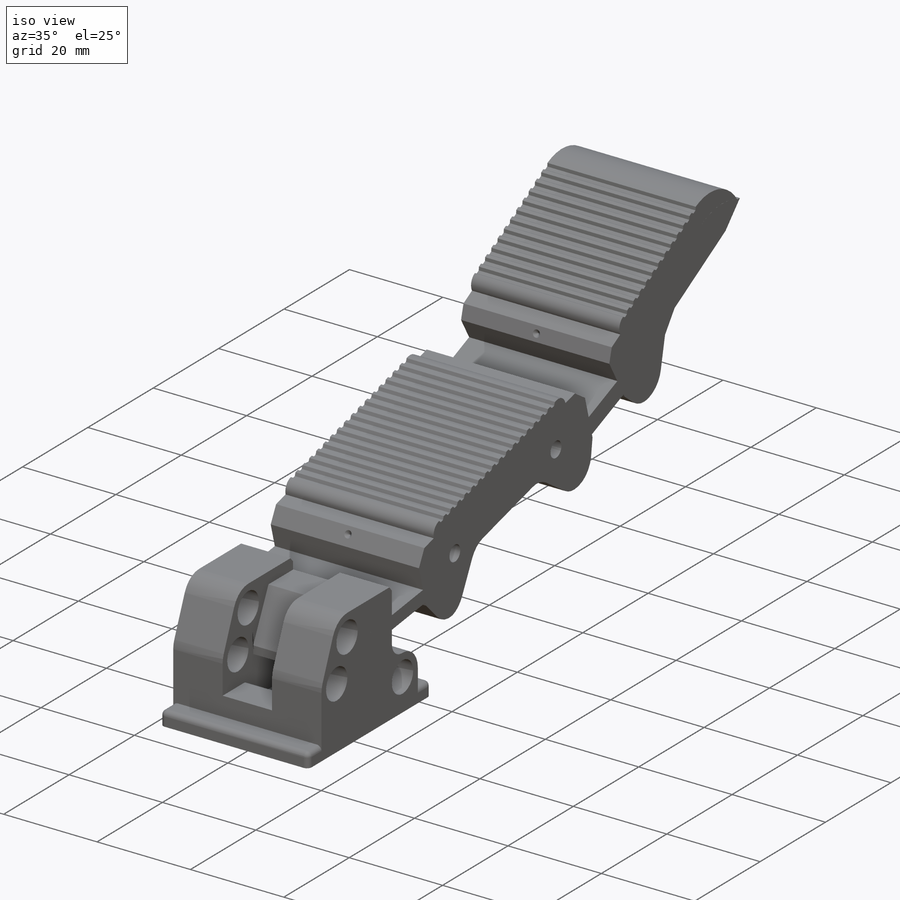
[diagram: iso view]
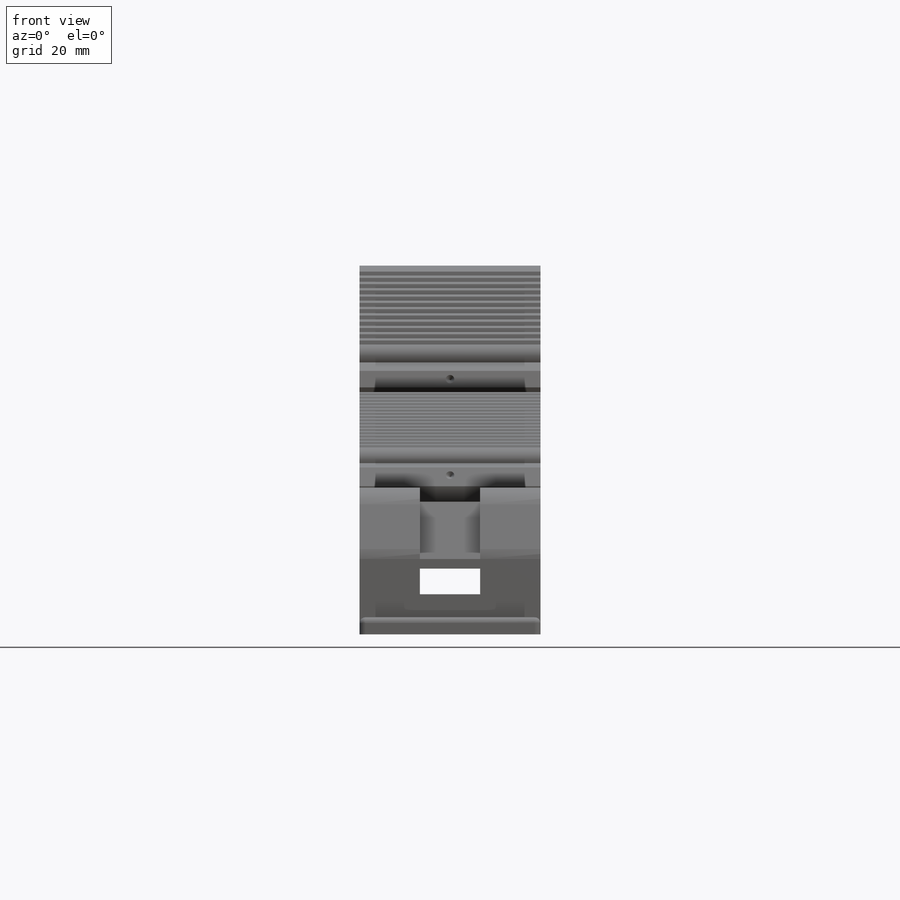
[diagram: front view]
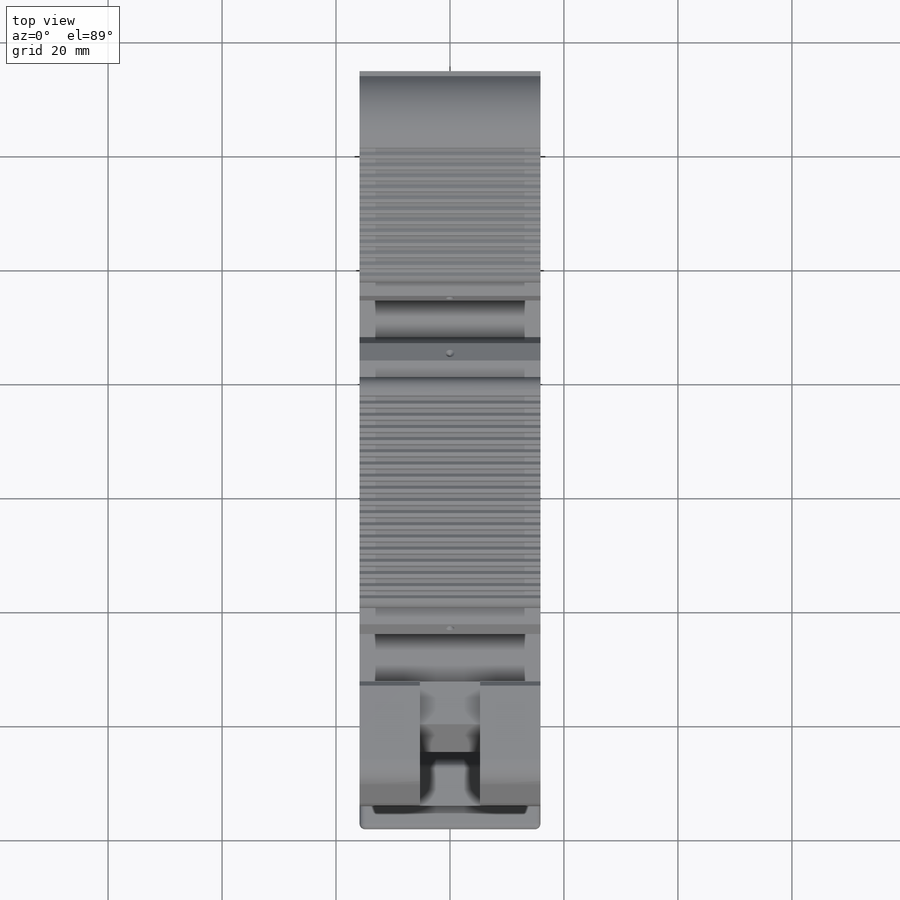
[diagram: top view]
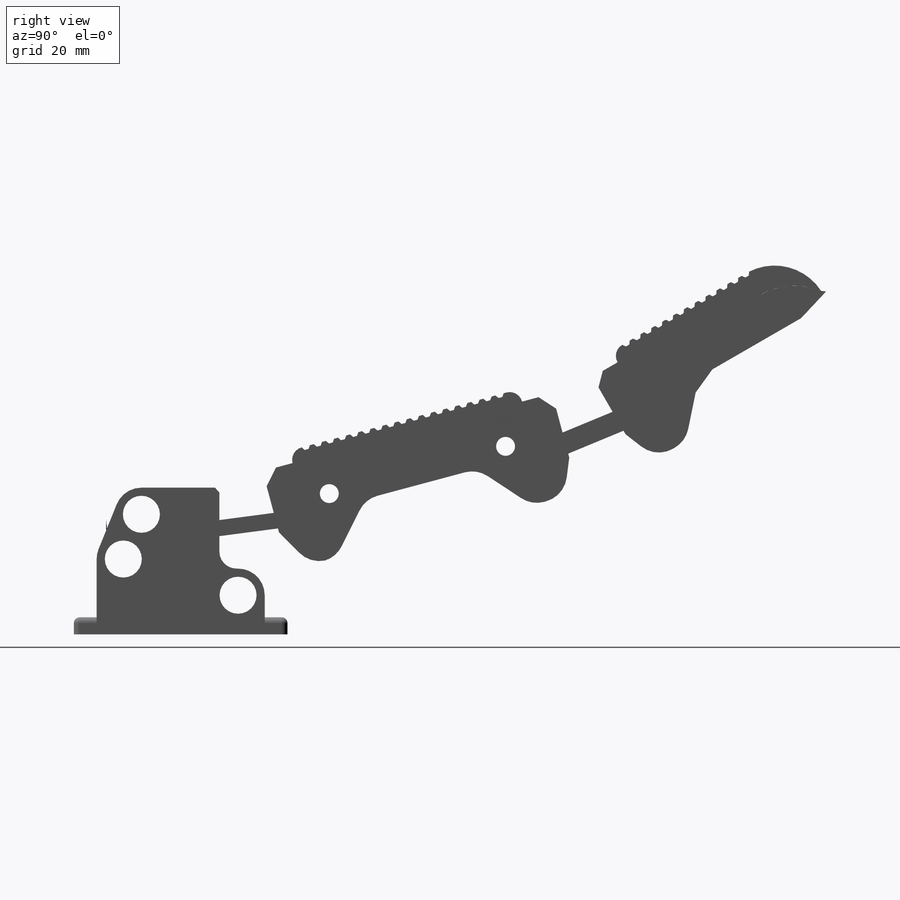
[diagram: right view]
SOLIDWORKS PART (.sldprt)
format: sldprt  version: not decoded by parser v0  size: 2,388,992 bytes
history: native  units: mm
features: sketch x26, cut_extrude x14, extrude x12, fillet x4, chamfer x2, material x1, boolean_combine x1 + 2 further entries (+25 scaffold rows collapsed; 9 parser-record rows omitted)
feature tree (96):
  scaffold x25  (default folders/planes/origin — collapsed)
  material  "ABS"
  "params_finger_t42"
  parser-record x9  (decoder bookkeeping rows leaked as tree rows — omitted from the tree; the rows remain in map.json)
  "params_print"
  sketch  "Sketch1"  dims[c1.D17=6.35mm c1.D18=6.35mm c1.D1=19.375mm c1.D2=12.525mm c1.D3=10.0mm c1.D4=10.0mm c1.D5=~32.598455mm c2.D5=15.0deg c2.D6=~17.356083mm c3.D6=15.0deg c3.D7=62.5mm c3.D8=37.5mm c3.D9=4.2mm c3.D10=~5.200185mm c3.D11=18.0mm c3.D12=18.0mm c3.D13=14.2mm c3.D14=1.5mm c3.D15=~14.417776mm c3.D1=7.5mm c4.D15=6.35mm c4.D16=38.75mm c4.D18=1.5mm c4.D19=40.25mm c5.D15=3.7mm]
  extrude  "Finger Frame"  Depth=31.75mm
  sketch  "Sketch3"  dims[D4=1.5mm D5=2.25mm D1=0.7mm D2=0.7mm D3=3.0mm]
  cut_extrude  "Cavity - Flexures"  [1 undecoded]
  sketch  "Sketch4"  dims[D1=1.5mm]
  extrude  "Flexure Anchors"  [1 undecoded]
  sketch  "Sketch5"  dims[c1.D4=3.175mm c1.D7=6.35mm c1.D1=1.5mm c1.D2=1.5mm c1.D3=8.0mm c1.D5=6.8375mm c1.D6=~48.878418mm c2.D6=40.0deg c3.D6=3.0mm c3.D8=~10.705912mm c4.D8=80.0deg c4.D9=1.0mm c4.D10=1.5mm c4.D11=1.5mm c4.D12=8.0mm c5.D8=~10.538536mm c6.D8=70.0deg c7.D8=~20.132224mm]
  cut_extrude  "Tendon Routing Features"  [1 undecoded]
  sketch  "Sketch6"  dims[c1.D1=3.0mm c1.D2=4.675mm c1.D3=1.5mm c2.D1=1.0mm c2.D4=3.0mm c2.D5=~9.543983mm c3.D5=45.0deg]
  cut_extrude  "Clearance - Base Tendon"  Depth=10.583333mm
  sketch  "Sketch7"  dims[D2=1.5mm D1=1.5mm]
  cut_extrude  "Tendon Port 1"  Depth=0.75mm
  sketch  "Sketch8"  dims[D2=1.5mm D1=1.5mm]
  cut_extrude  "Tendon Port 2"  Depth=0.75mm
  sketch  "Sketch9"  dims[D1=1.5mm]
  cut_extrude  "Tendon Port 3"  Depth=0.75mm
  chamfer  "Tendon Port Contouring"  Distance=0.75mm Angle=45deg
  sketch  "Sketch10"  dims[D1=2.3mm D2=2.95mm D3=2.3mm]
  extrude  "Finger Pad Outline"  [1 undecoded]
  sketch  "Sketch11"  dims[D1=0.7mm]
  cut_extrude  "Finger Outline"  [1 undecoded]
  sketch  "Sketch12"  dims[D3=0.7mm D1=0.7mm D2=0.7mm]
  cut_extrude  "Cavity - Finger Pads"  [1 undecoded]
  sketch  "Sketch13"
  cut_extrude  "Back Cutaway"  Depth=19.75mm
  sketch  "Sketch14"
  extrude  "Pad Hooks"  Depth=28.75mm
  sketch  "Sketch15"  dims[D1=0.7mm D2=1.5mm D4=2.2mm D5=~37.194007mm D7=2.2mm D8=~25.183485mm D3=17.0 D6=12.0]
  extrude  "Pad Ridges"  [1 undecoded]
  fillet  "Finger Contouring"  Radius=5mm
  fillet  "Finger Contouring 2"  Radius=3mm
  sketch  "Sketch25"  dims[D1=4.0mm D2=4.0mm]
  extrude  "Base Tabs"  Depth=3mm
  sketch  "Sketch19"  dims[c1.D1=6.35mm c1.D2=3.175mm c2.D1=0.075mm c2.D2=0.075mm]
  cut_extrude  "Print Clearance - Pins"  [1 undecoded]
  fillet  "Print Clearance - Contouring"  Radius=1mm
  sketch  "Sketch16"  dims[D1=5.0mm]
  extrude  "Insert Base"  [1 undecoded]
  sketch  "Sketch17"  dims[D1=3.7mm]
  cut_extrude  "Clearance - Insert"  Depth=4.5mm
  sketch  "Sketch20"  dims[D1=0.0mm D2=0.0mm D3=0.0mm D4=0.0mm]
  extrude  "Pad Material"  [1 undecoded]
  sketch  "Sketch21"  dims[D1=0.0mm D2=0.0mm]
  cut_extrude  "Wall Removal"  [1 undecoded]
  sketch  "Sketch26"  dims[D1=6.0mm]
  extrude  "Mold Base"  Depth=3mm
  sketch  "Sketch27"  dims[D1=3.0mm]
  extrude  "Mold Outer Wall"  [1 undecoded]
  sketch  "Sketch28"  dims[D1=0.0mm D2=0.075mm D3=0.075mm D4=0.075mm]
  cut_extrude  "Mold Inner Cut"  [1 undecoded]
  boolean_combine  "Combine - Mold"
  sketch  "Sketch29"  dims[D1=0.075mm D2=0.075mm]
  extrude  "Mold Outermost Wall"  Depth=3mm
  fillet  "Print Clearances - Mold Contouring"  Radius=1mm
  sketch  "Sketch30"  dims[D1=0.075mm]
  cut_extrude  "Mold Split"  [1 undecoded]
  sketch  "Sketch31"  dims[D1=3.0mm]
  extrude  "Mold Tab"  Depth=25.75mm
  chamfer  "Mold Tab Chamfer"  Distance=3mm Angle=45deg
decode coverage: 42 of 59 modeling features carry decoded parameters; 2 rows unclassified (native names shown)
note: ~ marks probable driven/reference dimensions
note: 14 parameter values undecoded
summary: no parameter record found for 14 features
note: suppression state not decoded; provenance and decode notes live in map.json
